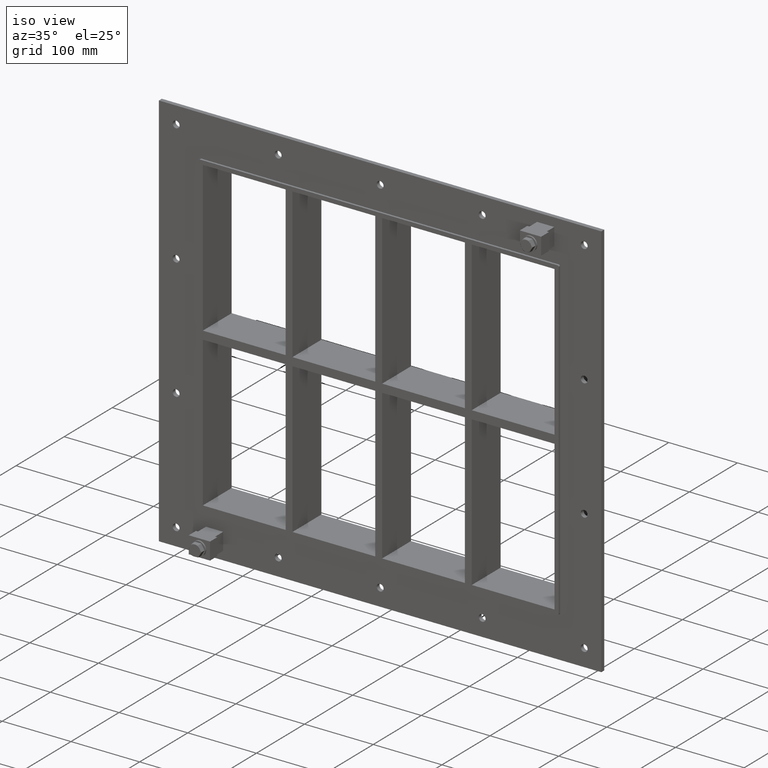
[diagram: clean part render]
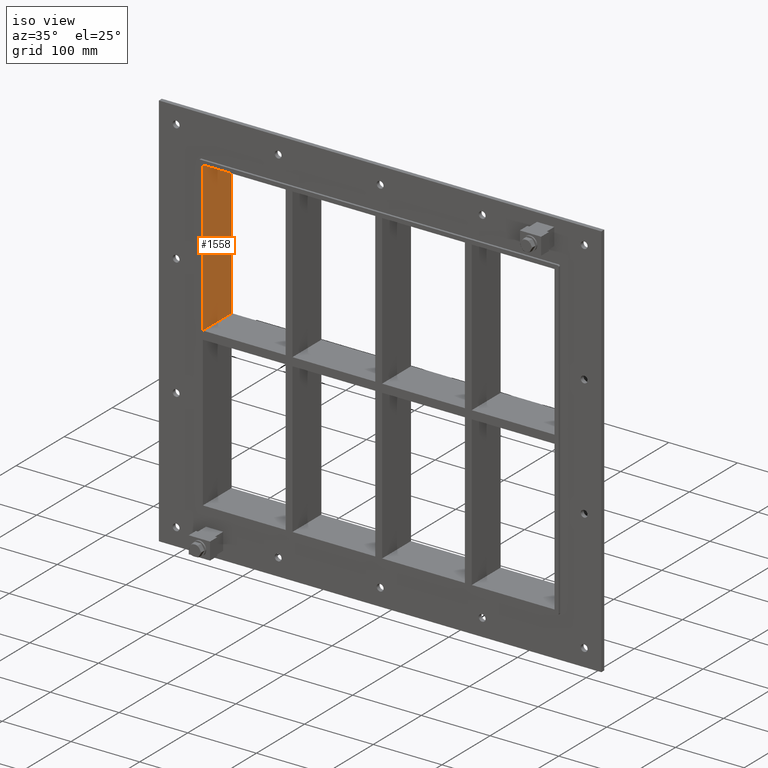
[diagram: same view with one face highlighted and labeled with its STEP entity id]
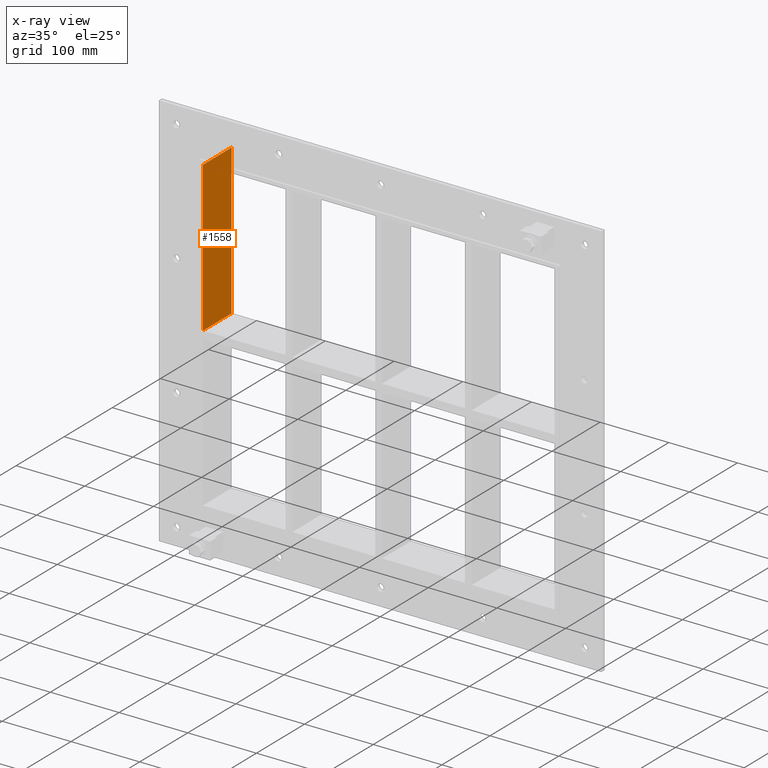
[diagram: x-ray of the same camera — body ghosted, the highlighted face saturated]
A machine part, iso view. The second image highlights one B-rep face of the part: STEP entity #1558.
The next image is the same camera in x-ray: the body ghosted, the highlighted face saturated — about 0% of this face is hidden behind the body in this view.
In plain terms, the highlighted planar face has unit normal (-1, 0, 0).
Its self-contained STEP definition (entity closure, byte-faithful):
#1052=CARTESIAN_POINT('',(-255.99999999999866,-3.0,6.000000000000227));
#1053=VERTEX_POINT('',#1052);
#1054=CARTESIAN_POINT('',(-256.00000000000006,-3.0,224.00000000000003));
#1055=VERTEX_POINT('',#1054);
#1056=CARTESIAN_POINT('',(-256.0,-3.0,6.000000000000227));
#1057=DIRECTION('',(0.0,0.0,1.0));
#1058=VECTOR('',#1057,217.99999999999983);
#1059=LINE('',#1056,#1058);
#1060=EDGE_CURVE('',#1053,#1055,#1059,.T.);
#1300=CARTESIAN_POINT('',(-255.99999999999866,57.0,6.000000000000227));
#1301=VERTEX_POINT('',#1300);
#1318=CARTESIAN_POINT('',(-256.00000000000006,57.0,224.00000000000003));
#1319=VERTEX_POINT('',#1318);
#1326=CARTESIAN_POINT('',(-256.0,57.0,224.00000000000006));
#1327=DIRECTION('',(0.0,0.0,-1.0));
#1328=VECTOR('',#1327,217.99999999999983);
#1329=LINE('',#1326,#1328);
#1330=EDGE_CURVE('',#1319,#1301,#1329,.T.);
#1532=CARTESIAN_POINT('',(-256.0,-3.0,6.000000000000227));
#1533=DIRECTION('',(0.0,1.0,0.0));
#1534=VECTOR('',#1533,60.000000000000007);
#1535=LINE('',#1532,#1534);
#1536=EDGE_CURVE('',#1053,#1301,#1535,.T.);
#1542=CARTESIAN_POINT('',(-256.0,0.0,-224.00000000000009));
#1543=DIRECTION('',(-1.0,0.0,0.0));
#1544=DIRECTION('',(0.0,0.0,1.0));
#1545=AXIS2_PLACEMENT_3D('',#1542,#1543,#1544);
#1546=PLANE('',#1545);
#1547=ORIENTED_EDGE('',*,*,#1536,.T.);
#1548=ORIENTED_EDGE('',*,*,#1330,.F.);
#1549=CARTESIAN_POINT('',(-256.0,-3.0,224.00000000000006));
#1550=DIRECTION('',(0.0,1.0,0.0));
#1551=VECTOR('',#1550,60.0);
#1552=LINE('',#1549,#1551);
#1553=EDGE_CURVE('',#1055,#1319,#1552,.T.);
#1554=ORIENTED_EDGE('',*,*,#1553,.F.);
#1555=ORIENTED_EDGE('',*,*,#1060,.F.);
#1556=EDGE_LOOP('',(#1547,#1548,#1554,#1555));
#1557=FACE_OUTER_BOUND('',#1556,.T.);
#1558=ADVANCED_FACE('',(#1557),#1546,.F.);